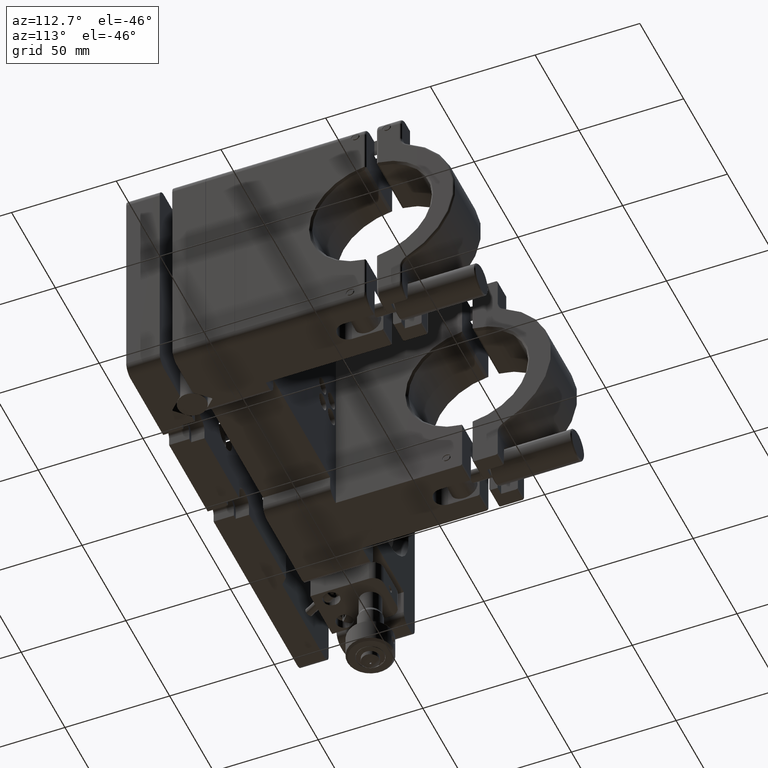
[diagram: clean part render]
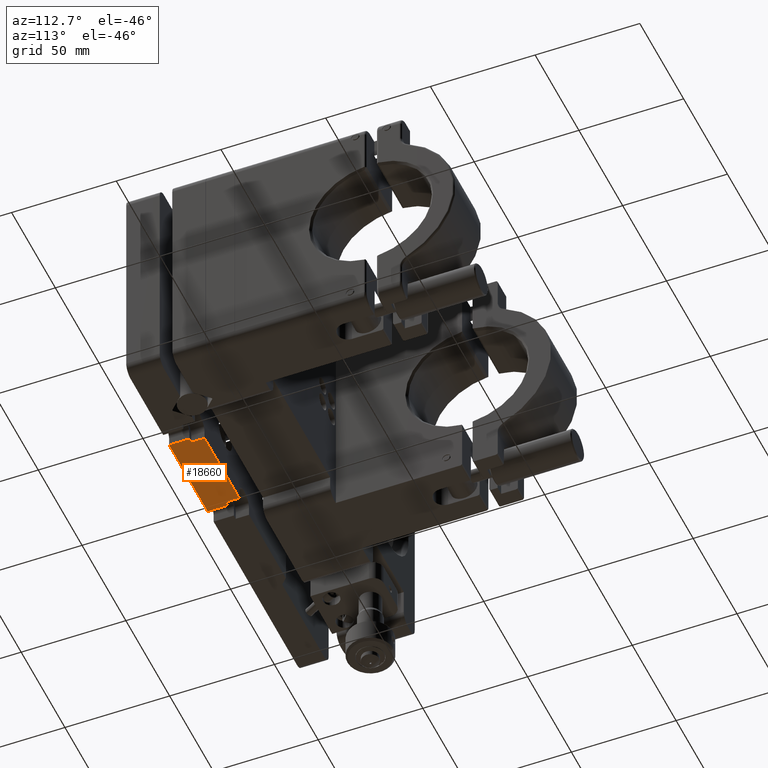
[diagram: same view with one face highlighted and labeled with its STEP entity id]
A machine part, auxiliary view. The second image highlights one B-rep face of the part: STEP entity #18660.
In plain terms, the highlighted planar face has unit normal (0, 0, 1).
Its self-contained STEP definition (entity closure, byte-faithful):
#212 = DIRECTION ( 'NONE',  ( -0.000000000000000000, 1.000000000000000000, 0.000000000000000000 ) ) ;
#422 = LINE ( 'NONE', #14069, #34420 ) ;
#862 = EDGE_CURVE ( 'NONE', #10507, #1735, #8168, .T. ) ;
#966 = VECTOR ( 'NONE', #42774, 1000.000000000000000 ) ;
#1145 = EDGE_CURVE ( 'NONE', #40731, #43348, #5881, .T. ) ;
#1446 = CARTESIAN_POINT ( 'NONE',  ( 6.978199999999976200, -8.000000000000000000, -55.00000000000000711 ) ) ;
#1544 = VECTOR ( 'NONE', #7858, 1000.000000000000000 ) ;
#1735 = VERTEX_POINT ( 'NONE', #37054 ) ;
#2004 = CARTESIAN_POINT ( 'NONE',  ( 48.84374999999996447, 8.000000000000000000, -55.00000000000000000 ) ) ;
#3086 = VECTOR ( 'NONE', #19156, 1000.000000000000000 ) ;
#3100 = FACE_OUTER_BOUND ( 'NONE', #12481, .T. ) ;
#5881 = LINE ( 'NONE', #32773, #22991 ) ;
#5969 = DIRECTION ( 'NONE',  ( 0.000000000000000000, 0.000000000000000000, 1.000000000000000000 ) ) ;
#7004 = DIRECTION ( 'NONE',  ( 0.000000000000000000, -1.000000000000000000, 0.000000000000000000 ) ) ;
#7858 = DIRECTION ( 'NONE',  ( -1.000000000000000000, -0.000000000000000000, -0.000000000000000000 ) ) ;
#8168 = LINE ( 'NONE', #21376, #14537 ) ;
#9509 = VERTEX_POINT ( 'NONE', #16987 ) ;
#10507 = VERTEX_POINT ( 'NONE', #33760 ) ;
#10533 = CARTESIAN_POINT ( 'NONE',  ( 51.02179999999997762, 8.000000000000000000, -55.00000000000000000 ) ) ;
#12481 = EDGE_LOOP ( 'NONE', ( #40804, #26521, #21823, #19866, #19779, #12534, #19576, #20223 ) ) ;
#12534 = ORIENTED_EDGE ( 'NONE', *, *, #41343, .T. ) ;
#14069 = CARTESIAN_POINT ( 'NONE',  ( 9.156249999999976907, 8.000000000000000000, -55.00000000000000000 ) ) ;
#14349 = CARTESIAN_POINT ( 'NONE',  ( 51.02179999999997762, 1.650000000000000355, -55.00000000000000000 ) ) ;
#14537 = VECTOR ( 'NONE', #35260, 1000.000000000000000 ) ;
#14731 = AXIS2_PLACEMENT_3D ( 'NONE', #27134, #5969, #37046 ) ;
#14992 = EDGE_CURVE ( 'NONE', #34426, #40731, #27292, .T. ) ;
#15212 = LINE ( 'NONE', #2004, #3086 ) ;
#16012 = DIRECTION ( 'NONE',  ( -1.000000000000000000, -0.000000000000000000, -0.000000000000000000 ) ) ;
#16402 = CARTESIAN_POINT ( 'NONE',  ( 48.84374999999997868, 8.000000000000000000, -55.00000000000000000 ) ) ;
#16987 = CARTESIAN_POINT ( 'NONE',  ( 48.84374999999997868, 1.650000000000000355, -55.00000000000000000 ) ) ;
#18660 = ADVANCED_FACE ( 'NONE', ( #3100 ), #23154, .F. ) ;
#19109 = EDGE_CURVE ( 'NONE', #1735, #27231, #422, .T. ) ;
#19156 = DIRECTION ( 'NONE',  ( 0.000000000000000000, -1.000000000000000000, 0.000000000000000000 ) ) ;
#19576 = ORIENTED_EDGE ( 'NONE', *, *, #40000, .T. ) ;
#19651 = CARTESIAN_POINT ( 'NONE',  ( -100.0000000000000284, 1.650000000000000355, -55.00000000000000000 ) ) ;
#19779 = ORIENTED_EDGE ( 'NONE', *, *, #23555, .F. ) ;
#19782 = VECTOR ( 'NONE', #212, 1000.000000000000000 ) ;
#19866 = ORIENTED_EDGE ( 'NONE', *, *, #19109, .T. ) ;
#20223 = ORIENTED_EDGE ( 'NONE', *, *, #14992, .T. ) ;
#21376 = CARTESIAN_POINT ( 'NONE',  ( -100.0000000000000284, 1.650000000000000355, -55.00000000000000000 ) ) ;
#21823 = ORIENTED_EDGE ( 'NONE', *, *, #862, .T. ) ;
#22991 = VECTOR ( 'NONE', #16012, 1000.000000000000000 ) ;
#23095 = CARTESIAN_POINT ( 'NONE',  ( 9.156249999999976907, 8.000000000000000000, -55.00000000000000000 ) ) ;
#23154 = PLANE ( 'NONE',  #14731 ) ;
#23555 = EDGE_CURVE ( 'NONE', #30962, #27231, #30347, .T. ) ;
#26521 = ORIENTED_EDGE ( 'NONE', *, *, #42766, .T. ) ;
#27134 = CARTESIAN_POINT ( 'NONE',  ( -100.0000000000000284, 8.000000000000000000, -55.00000000000000000 ) ) ;
#27231 = VERTEX_POINT ( 'NONE', #23095 ) ;
#27292 = LINE ( 'NONE', #10533, #42245 ) ;
#30347 = LINE ( 'NONE', #33873, #1544 ) ;
#30962 = VERTEX_POINT ( 'NONE', #16402 ) ;
#32773 = CARTESIAN_POINT ( 'NONE',  ( -100.0000000000000284, -8.000000000000000000, -55.00000000000000000 ) ) ;
#33760 = CARTESIAN_POINT ( 'NONE',  ( 6.978199999999976200, 1.650000000000000355, -55.00000000000000000 ) ) ;
#33873 = CARTESIAN_POINT ( 'NONE',  ( -100.0000000000000284, 8.000000000000000000, -55.00000000000000000 ) ) ;
#34420 = VECTOR ( 'NONE', #40491, 1000.000000000000000 ) ;
#34426 = VERTEX_POINT ( 'NONE', #14349 ) ;
#34557 = LINE ( 'NONE', #37662, #19782 ) ;
#35260 = DIRECTION ( 'NONE',  ( 1.000000000000000000, 0.000000000000000000, -0.000000000000000000 ) ) ;
#35821 = CARTESIAN_POINT ( 'NONE',  ( 51.02179999999997762, -8.000000000000000000, -55.00000000000000711 ) ) ;
#36202 = LINE ( 'NONE', #19651, #966 ) ;
#37046 = DIRECTION ( 'NONE',  ( 1.000000000000000000, 0.000000000000000000, -0.000000000000000000 ) ) ;
#37054 = CARTESIAN_POINT ( 'NONE',  ( 9.156249999999976907, 1.650000000000000355, -55.00000000000000000 ) ) ;
#37662 = CARTESIAN_POINT ( 'NONE',  ( 6.978199999999976200, 8.000000000000000000, -55.00000000000000000 ) ) ;
#40000 = EDGE_CURVE ( 'NONE', #9509, #34426, #36202, .T. ) ;
#40491 = DIRECTION ( 'NONE',  ( -0.000000000000000000, 1.000000000000000000, 0.000000000000000000 ) ) ;
#40731 = VERTEX_POINT ( 'NONE', #35821 ) ;
#40804 = ORIENTED_EDGE ( 'NONE', *, *, #1145, .T. ) ;
#41343 = EDGE_CURVE ( 'NONE', #30962, #9509, #15212, .T. ) ;
#42245 = VECTOR ( 'NONE', #7004, 1000.000000000000000 ) ;
#42766 = EDGE_CURVE ( 'NONE', #43348, #10507, #34557, .T. ) ;
#42774 = DIRECTION ( 'NONE',  ( 1.000000000000000000, 0.000000000000000000, -0.000000000000000000 ) ) ;
#43348 = VERTEX_POINT ( 'NONE', #1446 ) ;